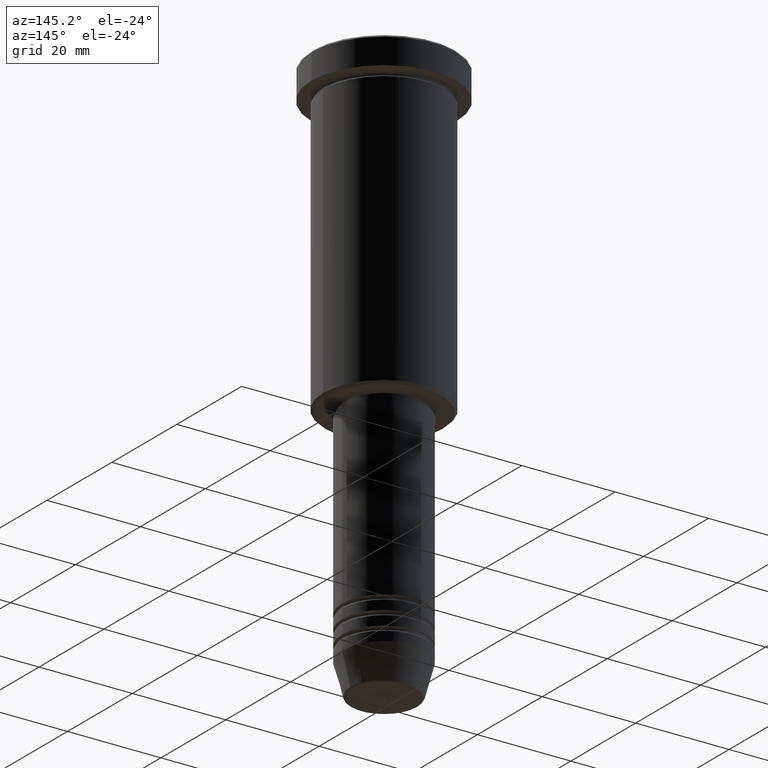
[diagram: clean part render]
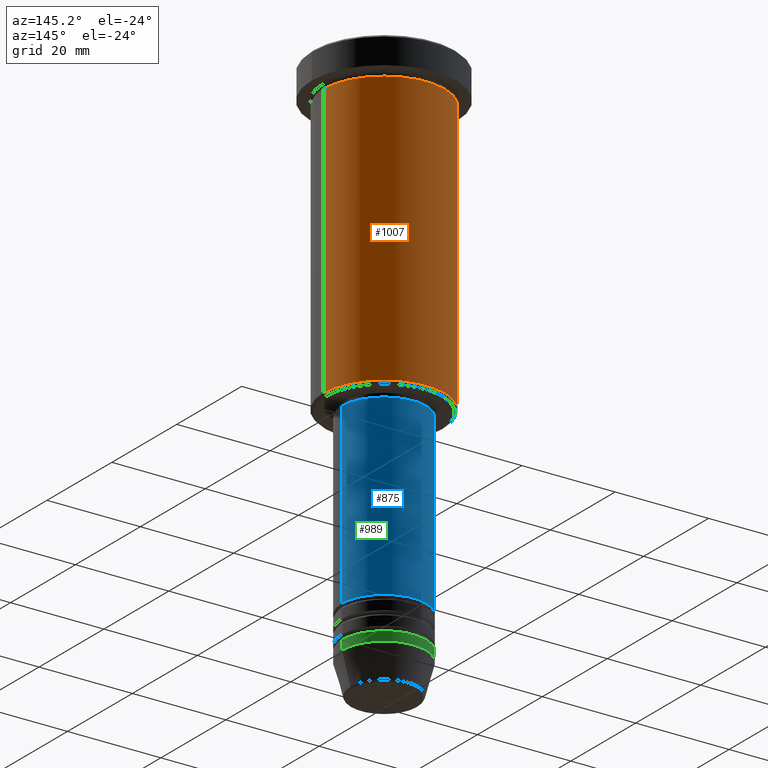
[diagram: same view with three faces highlighted in distinct colors, each labeled with its STEP entity id]
A machine part, auxiliary view with three faces highlighted in distinct colors.
Their STEP definitions:

[orange] entity #1007 — the highlighted cylindrical surface (partial cylindrical patch) has radius 13 mm, axis along (-0, -0, 1).
#27 = EDGE_CURVE ( 'NONE', #779, #571, #129, .T. ) ;
#73 = CARTESIAN_POINT ( 'NONE',  ( -13.00000000000000000, 1.592040838891559095E-15, -6.999999999999995559 ) ) ;
#75 = CARTESIAN_POINT ( 'NONE',  ( 13.00000000000000000, 0.000000000000000000, 0.000000000000000000 ) ) ;
#86 = DIRECTION ( 'NONE',  ( -0.000000000000000000, -0.000000000000000000, 1.000000000000000000 ) ) ;
#89 = EDGE_LOOP ( 'NONE', ( #829, #274, #541, #473 ) ) ;
#96 = VERTEX_POINT ( 'NONE', #73 ) ;
#129 = CIRCLE ( 'NONE', #148, 13.00000000000000000 ) ;
#134 = DIRECTION ( 'NONE',  ( -0.000000000000000000, -0.000000000000000000, 1.000000000000000000 ) ) ;
#141 = EDGE_CURVE ( 'NONE', #571, #96, #611, .T. ) ;
#148 = AXIS2_PLACEMENT_3D ( 'NONE', #1034, #134, #219 ) ;
#149 = DIRECTION ( 'NONE',  ( -0.000000000000000000, -0.000000000000000000, 1.000000000000000000 ) ) ;
#219 = DIRECTION ( 'NONE',  ( -1.000000000000000000, 0.000000000000000000, 0.000000000000000000 ) ) ;
#271 = AXIS2_PLACEMENT_3D ( 'NONE', #1067, #537, #976 ) ;
#274 = ORIENTED_EDGE ( 'NONE', *, *, #141, .T. ) ;
#318 = AXIS2_PLACEMENT_3D ( 'NONE', #894, #720, #912 ) ;
#339 = VERTEX_POINT ( 'NONE', #504 ) ;
#473 = ORIENTED_EDGE ( 'NONE', *, *, #1013, .F. ) ;
#504 = CARTESIAN_POINT ( 'NONE',  ( 13.00000000000000000, 0.000000000000000000, -6.999999999999995559 ) ) ;
#537 = DIRECTION ( 'NONE',  ( -0.000000000000000000, -0.000000000000000000, 1.000000000000000000 ) ) ;
#541 = ORIENTED_EDGE ( 'NONE', *, *, #914, .F. ) ;
#571 = VERTEX_POINT ( 'NONE', #737 ) ;
#602 = CARTESIAN_POINT ( 'NONE',  ( -13.00000000000000000, 1.592040838891559095E-15, 0.000000000000000000 ) ) ;
#611 = LINE ( 'NONE', #602, #870 ) ;
#644 = CIRCLE ( 'NONE', #271, 13.00000000000000000 ) ;
#720 = DIRECTION ( 'NONE',  ( -0.000000000000000000, -0.000000000000000000, 1.000000000000000000 ) ) ;
#737 = CARTESIAN_POINT ( 'NONE',  ( -13.00000000000000000, 1.592040838891559095E-15, -65.49999999999998579 ) ) ;
#779 = VERTEX_POINT ( 'NONE', #780 ) ;
#780 = CARTESIAN_POINT ( 'NONE',  ( 13.00000000000000000, 0.000000000000000000, -65.49999999999998579 ) ) ;
#815 = LINE ( 'NONE', #75, #984 ) ;
#829 = ORIENTED_EDGE ( 'NONE', *, *, #27, .T. ) ;
#870 = VECTOR ( 'NONE', #149, 1000.000000000000000 ) ;
#894 = CARTESIAN_POINT ( 'NONE',  ( 0.000000000000000000, 0.000000000000000000, 0.000000000000000000 ) ) ;
#907 = CYLINDRICAL_SURFACE ( 'NONE', #318, 13.00000000000000000 ) ;
#912 = DIRECTION ( 'NONE',  ( 1.000000000000000000, 0.000000000000000000, 0.000000000000000000 ) ) ;
#914 = EDGE_CURVE ( 'NONE', #339, #96, #644, .T. ) ;
#976 = DIRECTION ( 'NONE',  ( 1.000000000000000000, 0.000000000000000000, 0.000000000000000000 ) ) ;
#984 = VECTOR ( 'NONE', #86, 1000.000000000000000 ) ;
#993 = FACE_OUTER_BOUND ( 'NONE', #89, .T. ) ;
#1007 = ADVANCED_FACE ( 'NONE', ( #993 ), #907, .T. ) ;
#1013 = EDGE_CURVE ( 'NONE', #779, #339, #815, .T. ) ;
#1034 = CARTESIAN_POINT ( 'NONE',  ( 0.000000000000000000, 0.000000000000000000, -65.49999999999998579 ) ) ;
#1067 = CARTESIAN_POINT ( 'NONE',  ( 0.000000000000000000, 0.000000000000000000, -6.999999999999995559 ) ) ;

[blue] entity #875 — the highlighted cylindrical surface (partial cylindrical patch) has radius 9 mm, axis along (-0, -0, 1).
#4 = CIRCLE ( 'NONE', #996, 9.000000000000000000 ) ;
#72 = DIRECTION ( 'NONE',  ( -0.000000000000000000, -0.000000000000000000, 1.000000000000000000 ) ) ;
#88 = VERTEX_POINT ( 'NONE', #425 ) ;
#110 = ORIENTED_EDGE ( 'NONE', *, *, #163, .F. ) ;
#153 = DIRECTION ( 'NONE',  ( 1.000000000000000000, 0.000000000000000000, 0.000000000000000000 ) ) ;
#163 = EDGE_CURVE ( 'NONE', #379, #366, #322, .T. ) ;
#223 = CARTESIAN_POINT ( 'NONE',  ( 9.000000000000000000, 0.000000000000000000, 0.000000000000000000 ) ) ;
#245 = DIRECTION ( 'NONE',  ( -0.000000000000000000, -0.000000000000000000, 1.000000000000000000 ) ) ;
#252 = DIRECTION ( 'NONE',  ( -0.000000000000000000, -0.000000000000000000, 1.000000000000000000 ) ) ;
#291 = EDGE_CURVE ( 'NONE', #88, #1166, #833, .T. ) ;
#292 = DIRECTION ( 'NONE',  ( -0.000000000000000000, -0.000000000000000000, 1.000000000000000000 ) ) ;
#322 = LINE ( 'NONE', #223, #1023 ) ;
#345 = CARTESIAN_POINT ( 'NONE',  ( 9.000000000000000000, 0.000000000000000000, -104.9999999999999858 ) ) ;
#366 = VERTEX_POINT ( 'NONE', #520 ) ;
#379 = VERTEX_POINT ( 'NONE', #345 ) ;
#392 = EDGE_CURVE ( 'NONE', #366, #1166, #4, .T. ) ;
#425 = CARTESIAN_POINT ( 'NONE',  ( -9.000000000000000000, 1.102182119232617714E-15, -104.9999999999999858 ) ) ;
#520 = CARTESIAN_POINT ( 'NONE',  ( 9.000000000000000000, 0.000000000000000000, -67.00000000000000000 ) ) ;
#522 = ORIENTED_EDGE ( 'NONE', *, *, #291, .T. ) ;
#622 = DIRECTION ( 'NONE',  ( 1.000000000000000000, 0.000000000000000000, 0.000000000000000000 ) ) ;
#640 = CARTESIAN_POINT ( 'NONE',  ( 0.000000000000000000, 0.000000000000000000, -104.9999999999999858 ) ) ;
#716 = DIRECTION ( 'NONE',  ( 1.000000000000000000, 0.000000000000000000, 0.000000000000000000 ) ) ;
#769 = AXIS2_PLACEMENT_3D ( 'NONE', #640, #796, #716 ) ;
#770 = CARTESIAN_POINT ( 'NONE',  ( -9.000000000000000000, 1.102182119232617714E-15, 0.000000000000000000 ) ) ;
#776 = CARTESIAN_POINT ( 'NONE',  ( 0.000000000000000000, 0.000000000000000000, 0.000000000000000000 ) ) ;
#784 = CYLINDRICAL_SURFACE ( 'NONE', #1038, 9.000000000000000000 ) ;
#796 = DIRECTION ( 'NONE',  ( -0.000000000000000000, -0.000000000000000000, 1.000000000000000000 ) ) ;
#833 = LINE ( 'NONE', #770, #880 ) ;
#851 = CARTESIAN_POINT ( 'NONE',  ( -9.000000000000000000, 1.102182119232617714E-15, -67.00000000000000000 ) ) ;
#862 = FACE_OUTER_BOUND ( 'NONE', #1014, .T. ) ;
#875 = ADVANCED_FACE ( 'NONE', ( #862 ), #784, .T. ) ;
#880 = VECTOR ( 'NONE', #292, 1000.000000000000000 ) ;
#885 = ORIENTED_EDGE ( 'NONE', *, *, #975, .T. ) ;
#953 = ORIENTED_EDGE ( 'NONE', *, *, #392, .F. ) ;
#975 = EDGE_CURVE ( 'NONE', #379, #88, #1095, .T. ) ;
#977 = CARTESIAN_POINT ( 'NONE',  ( 0.000000000000000000, 0.000000000000000000, -67.00000000000000000 ) ) ;
#996 = AXIS2_PLACEMENT_3D ( 'NONE', #977, #245, #153 ) ;
#1014 = EDGE_LOOP ( 'NONE', ( #885, #522, #953, #110 ) ) ;
#1023 = VECTOR ( 'NONE', #72, 1000.000000000000000 ) ;
#1038 = AXIS2_PLACEMENT_3D ( 'NONE', #776, #252, #622 ) ;
#1095 = CIRCLE ( 'NONE', #769, 9.000000000000000000 ) ;
#1166 = VERTEX_POINT ( 'NONE', #851 ) ;

[green] entity #989 — the highlighted cylindrical surface (partial cylindrical patch) has radius 9 mm, axis along (-0, -0, 1).
#5 = AXIS2_PLACEMENT_3D ( 'NONE', #59, #519, #1146 ) ;
#26 = DIRECTION ( 'NONE',  ( 1.000000000000000000, 0.000000000000000000, 0.000000000000000000 ) ) ;
#40 = VECTOR ( 'NONE', #1027, 1000.000000000000000 ) ;
#41 = CIRCLE ( 'NONE', #513, 9.000000000000000000 ) ;
#59 = CARTESIAN_POINT ( 'NONE',  ( 0.000000000000000000, 0.000000000000000000, -114.0000000000000142 ) ) ;
#70 = LINE ( 'NONE', #1069, #844 ) ;
#105 = VERTEX_POINT ( 'NONE', #915 ) ;
#171 = VERTEX_POINT ( 'NONE', #311 ) ;
#261 = EDGE_LOOP ( 'NONE', ( #893, #638, #782, #1008 ) ) ;
#262 = DIRECTION ( 'NONE',  ( 1.000000000000000000, 0.000000000000000000, 0.000000000000000000 ) ) ;
#311 = CARTESIAN_POINT ( 'NONE',  ( -9.000000000000000000, 1.102182119232617714E-15, -112.0000000000000142 ) ) ;
#327 = EDGE_CURVE ( 'NONE', #105, #171, #1033, .T. ) ;
#371 = FACE_OUTER_BOUND ( 'NONE', #261, .T. ) ;
#387 = CARTESIAN_POINT ( 'NONE',  ( -9.000000000000000000, 1.102182119232617714E-15, 0.000000000000000000 ) ) ;
#487 = CARTESIAN_POINT ( 'NONE',  ( 9.000000000000000000, 0.000000000000000000, -112.0000000000000142 ) ) ;
#496 = CIRCLE ( 'NONE', #5, 9.000000000000000000 ) ;
#513 = AXIS2_PLACEMENT_3D ( 'NONE', #1026, #667, #26 ) ;
#519 = DIRECTION ( 'NONE',  ( -0.000000000000000000, -0.000000000000000000, 1.000000000000000000 ) ) ;
#638 = ORIENTED_EDGE ( 'NONE', *, *, #327, .T. ) ;
#639 = EDGE_CURVE ( 'NONE', #651, #171, #41, .T. ) ;
#651 = VERTEX_POINT ( 'NONE', #487 ) ;
#667 = DIRECTION ( 'NONE',  ( -0.000000000000000000, -0.000000000000000000, 1.000000000000000000 ) ) ;
#731 = CYLINDRICAL_SURFACE ( 'NONE', #884, 9.000000000000000000 ) ;
#782 = ORIENTED_EDGE ( 'NONE', *, *, #639, .F. ) ;
#809 = CARTESIAN_POINT ( 'NONE',  ( 9.000000000000000000, 0.000000000000000000, -114.0000000000000142 ) ) ;
#825 = EDGE_CURVE ( 'NONE', #985, #651, #70, .T. ) ;
#844 = VECTOR ( 'NONE', #970, 1000.000000000000000 ) ;
#881 = EDGE_CURVE ( 'NONE', #985, #105, #496, .T. ) ;
#884 = AXIS2_PLACEMENT_3D ( 'NONE', #900, #1001, #262 ) ;
#893 = ORIENTED_EDGE ( 'NONE', *, *, #881, .T. ) ;
#900 = CARTESIAN_POINT ( 'NONE',  ( 0.000000000000000000, 0.000000000000000000, 0.000000000000000000 ) ) ;
#915 = CARTESIAN_POINT ( 'NONE',  ( -9.000000000000000000, 1.102182119232617714E-15, -114.0000000000000142 ) ) ;
#970 = DIRECTION ( 'NONE',  ( -0.000000000000000000, -0.000000000000000000, 1.000000000000000000 ) ) ;
#985 = VERTEX_POINT ( 'NONE', #809 ) ;
#989 = ADVANCED_FACE ( 'NONE', ( #371 ), #731, .T. ) ;
#1001 = DIRECTION ( 'NONE',  ( -0.000000000000000000, -0.000000000000000000, 1.000000000000000000 ) ) ;
#1008 = ORIENTED_EDGE ( 'NONE', *, *, #825, .F. ) ;
#1026 = CARTESIAN_POINT ( 'NONE',  ( 0.000000000000000000, 0.000000000000000000, -112.0000000000000142 ) ) ;
#1027 = DIRECTION ( 'NONE',  ( -0.000000000000000000, -0.000000000000000000, 1.000000000000000000 ) ) ;
#1033 = LINE ( 'NONE', #387, #40 ) ;
#1069 = CARTESIAN_POINT ( 'NONE',  ( 9.000000000000000000, 0.000000000000000000, 0.000000000000000000 ) ) ;
#1146 = DIRECTION ( 'NONE',  ( 1.000000000000000000, 0.000000000000000000, 0.000000000000000000 ) ) ;